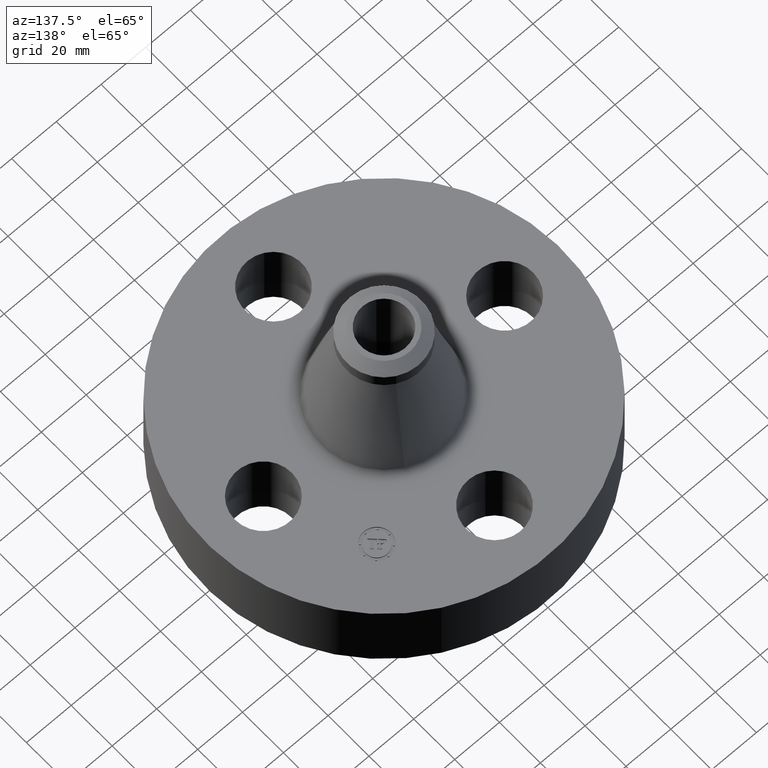
[diagram: clean part render]
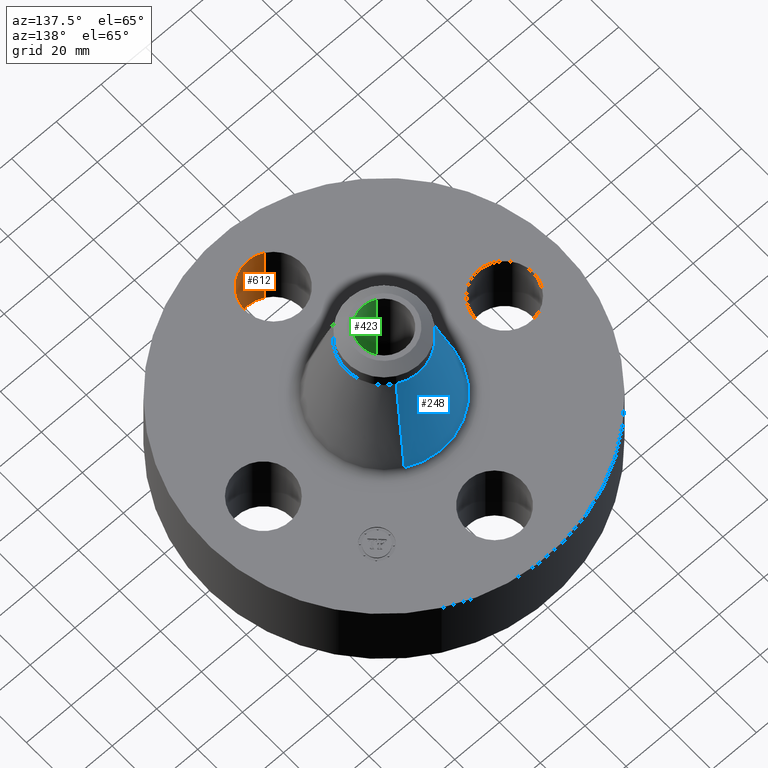
[diagram: same view with three faces highlighted in distinct colors, each labeled with its STEP entity id]
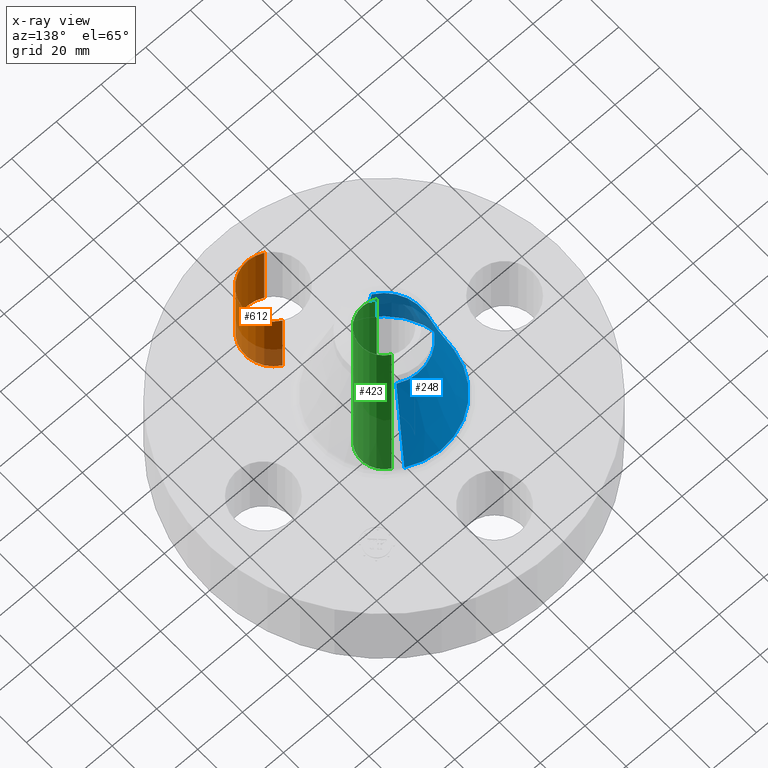
[diagram: x-ray of the same camera — body ghosted, the three highlighted faces saturated]
A machine part, auxiliary view with three faces highlighted in distinct colors.
The next image is the same camera in x-ray (body ghosted, the three faces saturated) — at least one of them is partly hidden behind the body in this view.
Their STEP definitions:

[orange] entity #612 — the highlighted cylindrical surface (partial cylindrical patch) has radius 12.7 mm, axis along (0, -0, -1).
#443=AXIS2_PLACEMENT_3D('Circle Axis2P3D',#441,#442,$) ;
#585=AXIS2_PLACEMENT_3D('Cylinder Axis2P3D',#582,#583,#584) ;
#603=AXIS2_PLACEMENT_3D('Circle Axis2P3D',#601,#602,$) ;
#441=CARTESIAN_POINT('Axis2P3D Location',(-2.09805925913E-016,-2.12500000001,0.)) ;
#445=CARTESIAN_POINT('Vertex',(0.239712769303,-1.68620871906,0.)) ;
#447=CARTESIAN_POINT('Vertex',(-0.239712769303,-2.56379128096,0.)) ;
#582=CARTESIAN_POINT('Axis2P3D Location',(1.3011872241E-016,-2.12500000001,1.37606299213)) ;
#587=CARTESIAN_POINT('Line Origine',(0.239712769303,-1.68620871906,0.690000000003)) ;
#591=CARTESIAN_POINT('Vertex',(0.239712769303,-1.68620871906,1.38000000001)) ;
#594=CARTESIAN_POINT('Line Origine',(-0.239712769303,-2.56379128096,0.690000000003)) ;
#598=CARTESIAN_POINT('Vertex',(-0.239712769303,-2.56379128096,1.38000000001)) ;
#601=CARTESIAN_POINT('Axis2P3D Location',(1.3011872241E-016,-2.12500000001,1.38000000001)) ;
#442=DIRECTION('Axis2P3D Direction',(0.,0.,-0.0393700787402)) ;
#583=DIRECTION('Axis2P3D Direction',(0.,-0.,-0.0393700787402)) ;
#584=DIRECTION('Axis2P3D XDirection',(-0.0188750212049,-0.0345504945626,0.)) ;
#588=DIRECTION('Vector Direction',(0.,0.,-0.0393700787402)) ;
#595=DIRECTION('Vector Direction',(0.,0.,-0.0393700787402)) ;
#602=DIRECTION('Axis2P3D Direction',(0.,-0.,-0.0393700787402)) ;
#589=VECTOR('Line Direction',#588,0.0393700787402) ;
#596=VECTOR('Line Direction',#595,0.0393700787402) ;
#607=ORIENTED_EDGE('',*,*,#593,.F.) ;
#608=ORIENTED_EDGE('',*,*,#449,.T.) ;
#609=ORIENTED_EDGE('',*,*,#600,.T.) ;
#610=ORIENTED_EDGE('',*,*,#605,.F.) ;
#612=ADVANCED_FACE('PartBody',(#611),#586,.F.) ;
#444=CIRCLE('generated circle',#443,0.500000000002) ;
#604=CIRCLE('generated circle',#603,0.500000000002) ;
#586=CYLINDRICAL_SURFACE('generated cylinder',#585,0.500000000002) ;
#449=EDGE_CURVE('',#446,#448,#444,.T.) ;
#593=EDGE_CURVE('',#446,#592,#590,.F.) ;
#600=EDGE_CURVE('',#448,#599,#597,.F.) ;
#605=EDGE_CURVE('',#592,#599,#604,.T.) ;
#606=EDGE_LOOP('',(#607,#608,#609,#610)) ;
#611=FACE_OUTER_BOUND('',#606,.T.) ;
#590=LINE('Line',#587,#589) ;
#597=LINE('Line',#594,#596) ;
#446=VERTEX_POINT('',#445) ;
#448=VERTEX_POINT('',#447) ;
#592=VERTEX_POINT('',#591) ;
#599=VERTEX_POINT('',#598) ;

[blue] entity #248 — the highlighted conical surface has half-angle 14.877 deg.
#196=AXIS2_PLACEMENT_3D('Circle Axis2P3D',#194,#195,$) ;
#209=AXIS2_PLACEMENT_3D('Cone Axis2P3D',#206,#207,#208) ;
#239=AXIS2_PLACEMENT_3D('Circle Axis2P3D',#237,#238,$) ;
#167=CARTESIAN_POINT('Vertex',(0.527994584647,0.966487604326,1.46919099619)) ;
#174=CARTESIAN_POINT('Vertex',(-0.527994584647,-0.966487604326,1.46919099619)) ;
#194=CARTESIAN_POINT('Axis2P3D Location',(0.,0.,1.46919099619)) ;
#206=CARTESIAN_POINT('Axis2P3D Location',(0.,0.,3.13044891098)) ;
#211=CARTESIAN_POINT('Line Origine',(0.422207720063,0.772846047588,2.29981995359)) ;
#215=CARTESIAN_POINT('Vertex',(0.31642085548,0.57920449085,3.13044891098)) ;
#222=CARTESIAN_POINT('Vertex',(-0.31642085548,-0.57920449085,3.13044891098)) ;
#225=CARTESIAN_POINT('Line Origine',(-0.422207720063,-0.772846047588,2.29981995359)) ;
#237=CARTESIAN_POINT('Axis2P3D Location',(0.,0.,3.13044891098)) ;
#195=DIRECTION('Axis2P3D Direction',(0.,0.,-0.0393700787402)) ;
#207=DIRECTION('Axis2P3D Direction',(0.,0.,-0.0393700787402)) ;
#208=DIRECTION('Axis2P3D XDirection',(-0.0188750212049,-0.0345504945626,0.)) ;
#212=DIRECTION('Vector Direction',(0.00484600500223,0.00887055265594,-0.0380503959388)) ;
#226=DIRECTION('Vector Direction',(-0.00484600500223,-0.00887055265594,-0.0380503959388)) ;
#238=DIRECTION('Axis2P3D Direction',(0.,0.,-0.0393700787402)) ;
#213=VECTOR('Line Direction',#212,0.0393700787402) ;
#227=VECTOR('Line Direction',#226,0.0393700787402) ;
#243=ORIENTED_EDGE('',*,*,#198,.F.) ;
#244=ORIENTED_EDGE('',*,*,#229,.T.) ;
#245=ORIENTED_EDGE('',*,*,#241,.T.) ;
#246=ORIENTED_EDGE('',*,*,#217,.F.) ;
#248=ADVANCED_FACE('PartBody',(#247),#210,.T.) ;
#197=CIRCLE('generated circle',#196,1.10130675596) ;
#240=CIRCLE('generated circle',#239,0.660000000003) ;
#210=CONICAL_SURFACE('Cone',#209,0.660000000003,0.259649377927) ;
#198=EDGE_CURVE('',#175,#168,#197,.T.) ;
#217=EDGE_CURVE('',#168,#216,#214,.F.) ;
#229=EDGE_CURVE('',#175,#223,#228,.F.) ;
#241=EDGE_CURVE('',#223,#216,#240,.T.) ;
#242=EDGE_LOOP('',(#243,#244,#245,#246)) ;
#247=FACE_OUTER_BOUND('',#242,.T.) ;
#214=LINE('Line',#211,#213) ;
#228=LINE('Line',#225,#227) ;
#168=VERTEX_POINT('',#167) ;
#175=VERTEX_POINT('',#174) ;
#216=VERTEX_POINT('',#215) ;
#223=VERTEX_POINT('',#222) ;

[green] entity #423 — the highlighted cylindrical surface (edge-blend (fillet) strip) has radius 10.3505 mm, axis along (0, 0, -1).
#365=AXIS2_PLACEMENT_3D('Circle Axis2P3D',#363,#364,$) ;
#384=AXIS2_PLACEMENT_3D('Cylinder Axis2P3D',#381,#382,#383) ;
#414=AXIS2_PLACEMENT_3D('Circle Axis2P3D',#412,#413,$) ;
#358=CARTESIAN_POINT('Vertex',(-0.195365906982,-0.357614893972,3.50000000001)) ;
#360=CARTESIAN_POINT('Vertex',(0.195365906982,0.357614893972,3.50000000001)) ;
#363=CARTESIAN_POINT('Axis2P3D Location',(0.,0.,3.50000000001)) ;
#381=CARTESIAN_POINT('Axis2P3D Location',(0.,0.,1.75000000001)) ;
#386=CARTESIAN_POINT('Line Origine',(-0.195365906982,-0.357614893972,1.75000000001)) ;
#390=CARTESIAN_POINT('Vertex',(-0.195365906982,-0.357614893972,-4.75560098737E-015)) ;
#397=CARTESIAN_POINT('Vertex',(0.195365906982,0.357614893972,-4.75560098737E-015)) ;
#400=CARTESIAN_POINT('Line Origine',(0.195365906982,0.357614893972,1.75000000001)) ;
#412=CARTESIAN_POINT('Axis2P3D Location',(0.,0.,-5.03534222192E-015)) ;
#364=DIRECTION('Axis2P3D Direction',(0.,0.,-0.0393700787402)) ;
#382=DIRECTION('Axis2P3D Direction',(0.,0.,-0.0393700787402)) ;
#383=DIRECTION('Axis2P3D XDirection',(0.0188750212049,0.0345504945626,0.)) ;
#387=DIRECTION('Vector Direction',(0.,0.,-0.0393700787402)) ;
#401=DIRECTION('Vector Direction',(0.,0.,-0.0393700787402)) ;
#413=DIRECTION('Axis2P3D Direction',(0.,0.,-0.0393700787402)) ;
#388=VECTOR('Line Direction',#387,0.0393700787402) ;
#402=VECTOR('Line Direction',#401,0.0393700787402) ;
#418=ORIENTED_EDGE('',*,*,#367,.F.) ;
#419=ORIENTED_EDGE('',*,*,#404,.T.) ;
#420=ORIENTED_EDGE('',*,*,#416,.T.) ;
#421=ORIENTED_EDGE('',*,*,#392,.F.) ;
#423=ADVANCED_FACE('PartBody',(#422),#385,.F.) ;
#366=CIRCLE('generated circle',#365,0.407500000002) ;
#415=CIRCLE('generated circle',#414,0.407500000002) ;
#385=CYLINDRICAL_SURFACE('generated cylinder',#384,0.407500000002) ;
#367=EDGE_CURVE('',#361,#359,#366,.T.) ;
#392=EDGE_CURVE('',#359,#391,#389,.T.) ;
#404=EDGE_CURVE('',#361,#398,#403,.T.) ;
#416=EDGE_CURVE('',#398,#391,#415,.T.) ;
#417=EDGE_LOOP('',(#418,#419,#420,#421)) ;
#422=FACE_OUTER_BOUND('',#417,.T.) ;
#389=LINE('Line',#386,#388) ;
#403=LINE('Line',#400,#402) ;
#359=VERTEX_POINT('',#358) ;
#361=VERTEX_POINT('',#360) ;
#391=VERTEX_POINT('',#390) ;
#398=VERTEX_POINT('',#397) ;